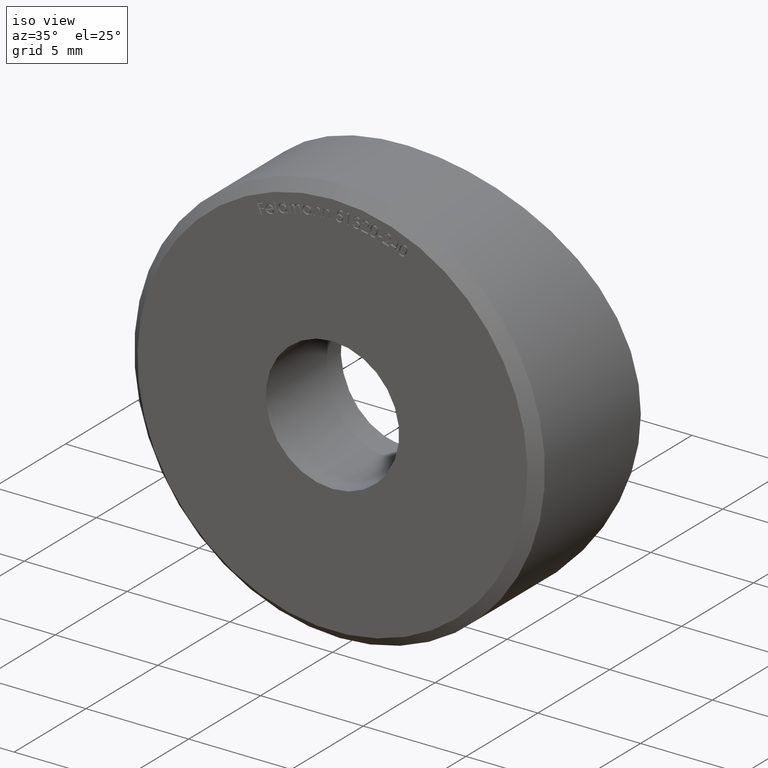
[diagram: clean part render]
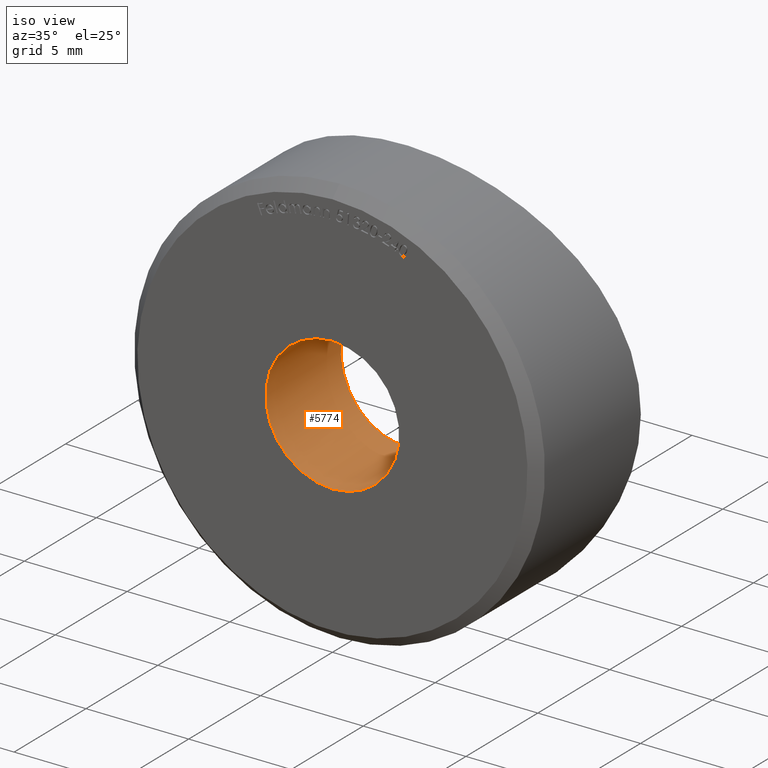
[diagram: same view with one face highlighted and labeled with its STEP entity id]
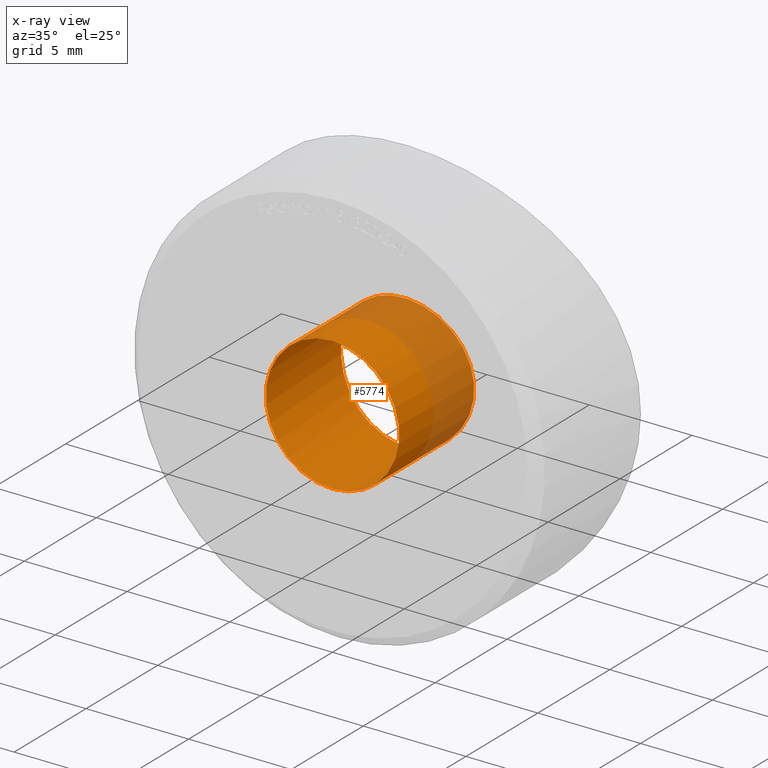
[diagram: x-ray of the same camera — body ghosted, the highlighted face saturated]
A machine part, iso view. The second image highlights one B-rep face of the part: STEP entity #5774.
The next image is the same camera in x-ray: the body ghosted, the highlighted face saturated — about 28% of this face is hidden behind the body in this view.
In plain terms, the highlighted cylindrical surface (bore or boss wall) has radius 3.25 mm, axis along (-0, -1, -0).
Its self-contained STEP definition (entity closure, byte-faithful):
#220 = VERTEX_POINT ( 'NONE', #9446 ) ;
#520 = CARTESIAN_POINT ( 'NONE',  ( 1.048529981722498450, 5.021968770915754554, -3.083577057088356721 ) ) ;
#571 = CARTESIAN_POINT ( 'NONE',  ( 3.229177637803254619, 5.216828684027046137, -0.4250637916766687452 ) ) ;
#614 = CARTESIAN_POINT ( 'NONE',  ( 0.4263024364801285548, 5.002867744136081818, -3.228881575251838942 ) ) ;
#818 = CARTESIAN_POINT ( 'NONE',  ( -3.229274830277273800, 5.216842898156260233, -0.4233290824152878273 ) ) ;
#856 = CARTESIAN_POINT ( 'NONE',  ( -2.586389986922645434, 5.138603916386615289, -1.979443261304688395 ) ) ;
#1240 = B_SPLINE_CURVE_WITH_KNOTS ( 'NONE', 3,
 ( #6425, #9517, #614, #10500, #520, #1562, #3571, #1477, #9442, #2579, #10368, #8366, #11398, #6474, #2482, #571, #7430, #2536, #10416, #5534, #6519, #10706, #2829, #4803, #4681, #7644, #9688, #3819, #10668, #11647, #8688, #1728, #9601, #4842, #5789, #12546, #3733, #1814, #5661, #11518, #7603, #12628, #8729, #6720, #6767, #11687, #9642, #12587, #11562, #3690, #818, #3774, #6595, #5746, #10586, #856, #10630, #1772, #8646, #7772, #12506, #1853, #2779, #9728, #6640, #8603 ),
 .UNSPECIFIED., .T., .F.,
 ( 4, 2, 2, 2, 2, 2, 2, 2, 2, 2, 2, 2, 2, 2, 2, 2, 2, 2, 2, 2, 2, 2, 2, 2, 2, 2, 2, 2, 2, 2, 2, 2, 4 ),
 ( 0.000000000000000000, 0.0006357056845218646193, 0.001271411369043729455, 0.001907117053565594508, 0.002542822738087458477, 0.003178528422609323313, 0.003814234107131187716, 0.004449939791653052118, 0.005085645476174916954, 0.005721351160696781790, 0.006357056845218646626, 0.006992762529740510595, 0.007628468214262375431, 0.008264173898784239400, 0.008899879583306104236, 0.009535585267827969072, 0.01017129095234983391, 0.01080699663687169874, 0.01144270232139356358, 0.01207840800591542842, 0.01271411369043729325, 0.01334981937495915635, 0.01398552505948102119, 0.01462123074400288603, 0.01525693642852475086, 0.01589264211304661570, 0.01652834779756847880, 0.01716405348209034537, 0.01779975916661220847, 0.01843546485113407504, 0.01907117053565593814, 0.01970687622017780471, 0.02034258190469966782 ),
 .UNSPECIFIED. ) ;
#1435 = EDGE_LOOP ( 'NONE', ( #4351 ) ) ;
#1477 = CARTESIAN_POINT ( 'NONE',  ( 1.981662925823903132, 5.080790279908299567, -2.584683055959863474 ) ) ;
#1562 = CARTESIAN_POINT ( 'NONE',  ( 1.441991219491952858, 5.042284068432699939, -2.920363660998537725 ) ) ;
#1728 = CARTESIAN_POINT ( 'NONE',  ( 0.4290106162444470850, 5.002910467979453379, 3.228566425994475519 ) ) ;
#1772 = CARTESIAN_POINT ( 'NONE',  ( -2.150313041471098252, 5.095453004224311577, -2.446113010688545142 ) ) ;
#1814 = CARTESIAN_POINT ( 'NONE',  ( -1.438155627730985930, 5.042063991068344464, 2.922161563145420970 ) ) ;
#1853 = CARTESIAN_POINT ( 'NONE',  ( -1.052485156239700625, 5.022151740207928761, -3.082136024825445464 ) ) ;
#1992 = CARTESIAN_POINT ( 'NONE',  ( 0.000000000000000000, 0.000000000000000000, 0.000000000000000000 ) ) ;
#2268 = EDGE_LOOP ( 'NONE', ( #6196 ) ) ;
#2482 = CARTESIAN_POINT ( 'NONE',  ( 3.145595490548648510, 5.205699916973163255, -0.8446871925885736099 ) ) ;
#2536 = CARTESIAN_POINT ( 'NONE',  ( 3.250118265357725633, 5.219700560261352429, 0.2103977332130213818 ) ) ;
#2579 = CARTESIAN_POINT ( 'NONE',  ( 2.448062656494853773, 5.123928633654901255, -2.148097275210696822 ) ) ;
#2779 = CARTESIAN_POINT ( 'NONE',  ( -0.8475268160846670673, 5.013961728945503182, -3.144849423873084415 ) ) ;
#2829 = CARTESIAN_POINT ( 'NONE',  ( 2.819960779465545464, 5.164914785271488284, 1.629446019926982459 ) ) ;
#3571 = CARTESIAN_POINT ( 'NONE',  ( 1.628565879586860277, 5.054323672550978586, -2.820522580515258504 ) ) ;
#3690 = CARTESIAN_POINT ( 'NONE',  ( -3.250188800157105096, 5.219710139655076908, -0.2120050396297211148 ) ) ;
#3733 = CARTESIAN_POINT ( 'NONE',  ( -1.046908145645620181, 5.021907378433354552, 3.084040068689063219 ) ) ;
#3774 = CARTESIAN_POINT ( 'NONE',  ( -3.146940574090644649, 5.205877760624889383, -0.8391593797503112961 ) ) ;
#3816 = DIRECTION ( 'NONE',  ( 0.000000000000000000, 0.000000000000000000, -1.000000000000000000 ) ) ;
#3819 = CARTESIAN_POINT ( 'NONE',  ( 1.631920500643816441, 5.054555856427086269, 2.818529059968327477 ) ) ;
#4145 = EDGE_CURVE ( 'NONE', #11605, #11605, #1240, .T. ) ;
#4351 = ORIENTED_EDGE ( 'NONE', *, *, #5070, .T. ) ;
#4681 = CARTESIAN_POINT ( 'NONE',  ( 2.450429032592647882, 5.124158624212124202, 2.145652445984763457 ) ) ;
#4803 = CARTESIAN_POINT ( 'NONE',  ( 2.584874799798257961, 5.138442078347351227, 1.981336770705002248 ) ) ;
#4842 = CARTESIAN_POINT ( 'NONE',  ( -0.2109819589072942925, 4.999989219539890506, 3.250080107116891881 ) ) ;
#5070 = EDGE_CURVE ( 'NONE', #220, #220, #12148, .T. ) ;
#5172 = AXIS2_PLACEMENT_3D ( 'NONE', #10776, #8004, #7877 ) ;
#5534 = CARTESIAN_POINT ( 'NONE',  ( 3.145958822005610500, 5.205748159584755008, 0.8429934243277729111 ) ) ;
#5661 = CARTESIAN_POINT ( 'NONE',  ( -1.627410081502070005, 5.054238453407312370, 2.821276434543868117 ) ) ;
#5731 = FACE_OUTER_BOUND ( 'NONE', #2268, .T. ) ;
#5746 = CARTESIAN_POINT ( 'NONE',  ( -2.921671661734994707, 5.177243264755912122, -1.439328668415348789 ) ) ;
#5774 = ADVANCED_FACE ( 'NONE', ( #10942, #5731 ), #10018, .F. ) ;
#5789 = CARTESIAN_POINT ( 'NONE',  ( -0.4220661638623164347, 5.002775310410142673, 3.229576131108934156 ) ) ;
#6196 = ORIENTED_EDGE ( 'NONE', *, *, #4145, .F. ) ;
#6425 = CARTESIAN_POINT ( 'NONE',  ( 2.710505431213761085E-17, 4.999999999999997335, -3.250000000000000444 ) ) ;
#6474 = CARTESIAN_POINT ( 'NONE',  ( 3.083071756089578397, 5.197466813958990350, -1.049739543660705987 ) ) ;
#6519 = CARTESIAN_POINT ( 'NONE',  ( 3.084544625550786900, 5.197655117978841943, 1.045698484185716870 ) ) ;
#6595 = CARTESIAN_POINT ( 'NONE',  ( -3.084480837210611615, 5.197647114509678090, -1.045853851925853562 ) ) ;
#6640 = CARTESIAN_POINT ( 'NONE',  ( -0.2149715688288973137, 4.999999999999997335, -3.250000000000000444 ) ) ;
#6720 = CARTESIAN_POINT ( 'NONE',  ( -2.819089928044760995, 5.164810286019198671, 1.631022796807030772 ) ) ;
#6767 = CARTESIAN_POINT ( 'NONE',  ( -2.919090948497037097, 5.176927482938228131, 1.444579258246738496 ) ) ;
#7430 = CARTESIAN_POINT ( 'NONE',  ( 3.249880716590925367, 5.219668298531711770, -0.2140356813326894925 ) ) ;
#7603 = CARTESIAN_POINT ( 'NONE',  ( -2.145985359300260686, 5.095064266807179720, 2.449923357455494166 ) ) ;
#7644 = CARTESIAN_POINT ( 'NONE',  ( 2.147467541681832515, 5.095186772379282303, 2.448838504302873531 ) ) ;
#7772 = CARTESIAN_POINT ( 'NONE',  ( -1.631781876379932550, 5.054533548672227816, -2.818774742655270060 ) ) ;
#7877 = DIRECTION ( 'NONE',  ( 0.000000000000000000, 0.000000000000000000, -1.000000000000000000 ) ) ;
#8004 = DIRECTION ( 'NONE',  ( -0.000000000000000000, -1.000000000000000000, -0.000000000000000000 ) ) ;
#8366 = CARTESIAN_POINT ( 'NONE',  ( 2.820094661264786584, 5.164924281247603943, -1.629482654017482268 ) ) ;
#8603 = CARTESIAN_POINT ( 'NONE',  ( 2.710505431213761085E-17, 4.999999999999997335, -3.250000000000000444 ) ) ;
#8646 = CARTESIAN_POINT ( 'NONE',  ( -1.986958277819702579, 5.081219133463616977, -2.580736318207860869 ) ) ;
#8688 = CARTESIAN_POINT ( 'NONE',  ( 0.8459167425008351504, 5.013918962660414813, 3.145173467499998043 ) ) ;
#8729 = CARTESIAN_POINT ( 'NONE',  ( -2.583146473561404033, 5.138253959068676657, 1.983647570067558208 ) ) ;
#9442 = CARTESIAN_POINT ( 'NONE',  ( 2.148655047755215541, 5.095304043563791296, -2.447573116302816487 ) ) ;
#9446 = CARTESIAN_POINT ( 'NONE',  ( 0.000000000000000000, 0.000000000000000000, -3.250000000000000444 ) ) ;
#9487 = CARTESIAN_POINT ( 'NONE',  ( 0.000000000000000000, 4.999999999999997335, -3.250000000000000444 ) ) ;
#9517 = CARTESIAN_POINT ( 'NONE',  ( 0.2149715688288973692, 4.999999999999996447, -3.250000000000000888 ) ) ;
#9601 = CARTESIAN_POINT ( 'NONE',  ( 0.2134427491707074631, 5.000010843146316830, 3.249919427076269685 ) ) ;
#9642 = CARTESIAN_POINT ( 'NONE',  ( -3.145432732290904809, 5.205679005065432463, 0.8447711474781012253 ) ) ;
#9688 = CARTESIAN_POINT ( 'NONE',  ( 1.983595191957993720, 5.080954669723503514, 2.583141633118215985 ) ) ;
#9728 = CARTESIAN_POINT ( 'NONE',  ( -0.4274584173392385056, 5.002869229922248806, -3.228878892783578980 ) ) ;
#10018 = CYLINDRICAL_SURFACE ( 'NONE', #5172, 3.250000000000000444 ) ;
#10368 = CARTESIAN_POINT ( 'NONE',  ( 2.582504017159901188, 5.138180740849042749, -1.984646220259668636 ) ) ;
#10416 = CARTESIAN_POINT ( 'NONE',  ( 3.228966467735915558, 5.216800701594014100, 0.4259933960190404600 ) ) ;
#10500 = CARTESIAN_POINT ( 'NONE',  ( 0.8419953112200837531, 5.013787085679410893, -3.146180841946801365 ) ) ;
#10586 = CARTESIAN_POINT ( 'NONE',  ( -2.822006798786111492, 5.165154103554828069, -1.626003203189718693 ) ) ;
#10630 = CARTESIAN_POINT ( 'NONE',  ( -2.449462402762648150, 5.124072103542926193, -2.146496907715613744 ) ) ;
#10668 = CARTESIAN_POINT ( 'NONE',  ( 1.441837657357937674, 5.042275337583059347, 2.920434893362530815 ) ) ;
#10706 = CARTESIAN_POINT ( 'NONE',  ( 2.921613246890578441, 5.177235934713475984, 1.439471049530360869 ) ) ;
#10776 = CARTESIAN_POINT ( 'NONE',  ( 0.000000000000000000, 7.796983714787956821, 0.000000000000000000 ) ) ;
#10838 = DIRECTION ( 'NONE',  ( 0.000000000000000000, -1.000000000000000000, 0.000000000000000000 ) ) ;
#10942 = FACE_OUTER_BOUND ( 'NONE', #1435, .T. ) ;
#11396 = AXIS2_PLACEMENT_3D ( 'NONE', #1992, #10838, #3816 ) ;
#11398 = CARTESIAN_POINT ( 'NONE',  ( 2.920907625844660682, 5.177151272264792325, -1.440688447932018112 ) ) ;
#11518 = CARTESIAN_POINT ( 'NONE',  ( -1.982437298098629119, 5.080846910563370677, 2.584183943258400173 ) ) ;
#11562 = CARTESIAN_POINT ( 'NONE',  ( -3.249808656960390341, 5.219658512049207388, 0.2177546018810568862 ) ) ;
#11605 = VERTEX_POINT ( 'NONE', #9487 ) ;
#11647 = CARTESIAN_POINT ( 'NONE',  ( 1.048487301102891456, 5.021967369706508144, 3.083587225289858846 ) ) ;
#11687 = CARTESIAN_POINT ( 'NONE',  ( -3.082711356203864828, 5.197417914382769233, 1.051090811150848570 ) ) ;
#12148 = CIRCLE ( 'NONE', #11396, 3.250000000000000444 ) ;
#12506 = CARTESIAN_POINT ( 'NONE',  ( -1.443301860362529387, 5.042373273349155305, -2.919617649540051207 ) ) ;
#12546 = CARTESIAN_POINT ( 'NONE',  ( -0.8419225894243302921, 5.013766523965830224, 3.146342032698135505 ) ) ;
#12587 = CARTESIAN_POINT ( 'NONE',  ( -3.228484984826805348, 5.216735707710508763, 0.4292668956795462898 ) ) ;
#12628 = CARTESIAN_POINT ( 'NONE',  ( -2.445860319327851418, 5.123702873961093474, 2.150615009264681188 ) ) ;